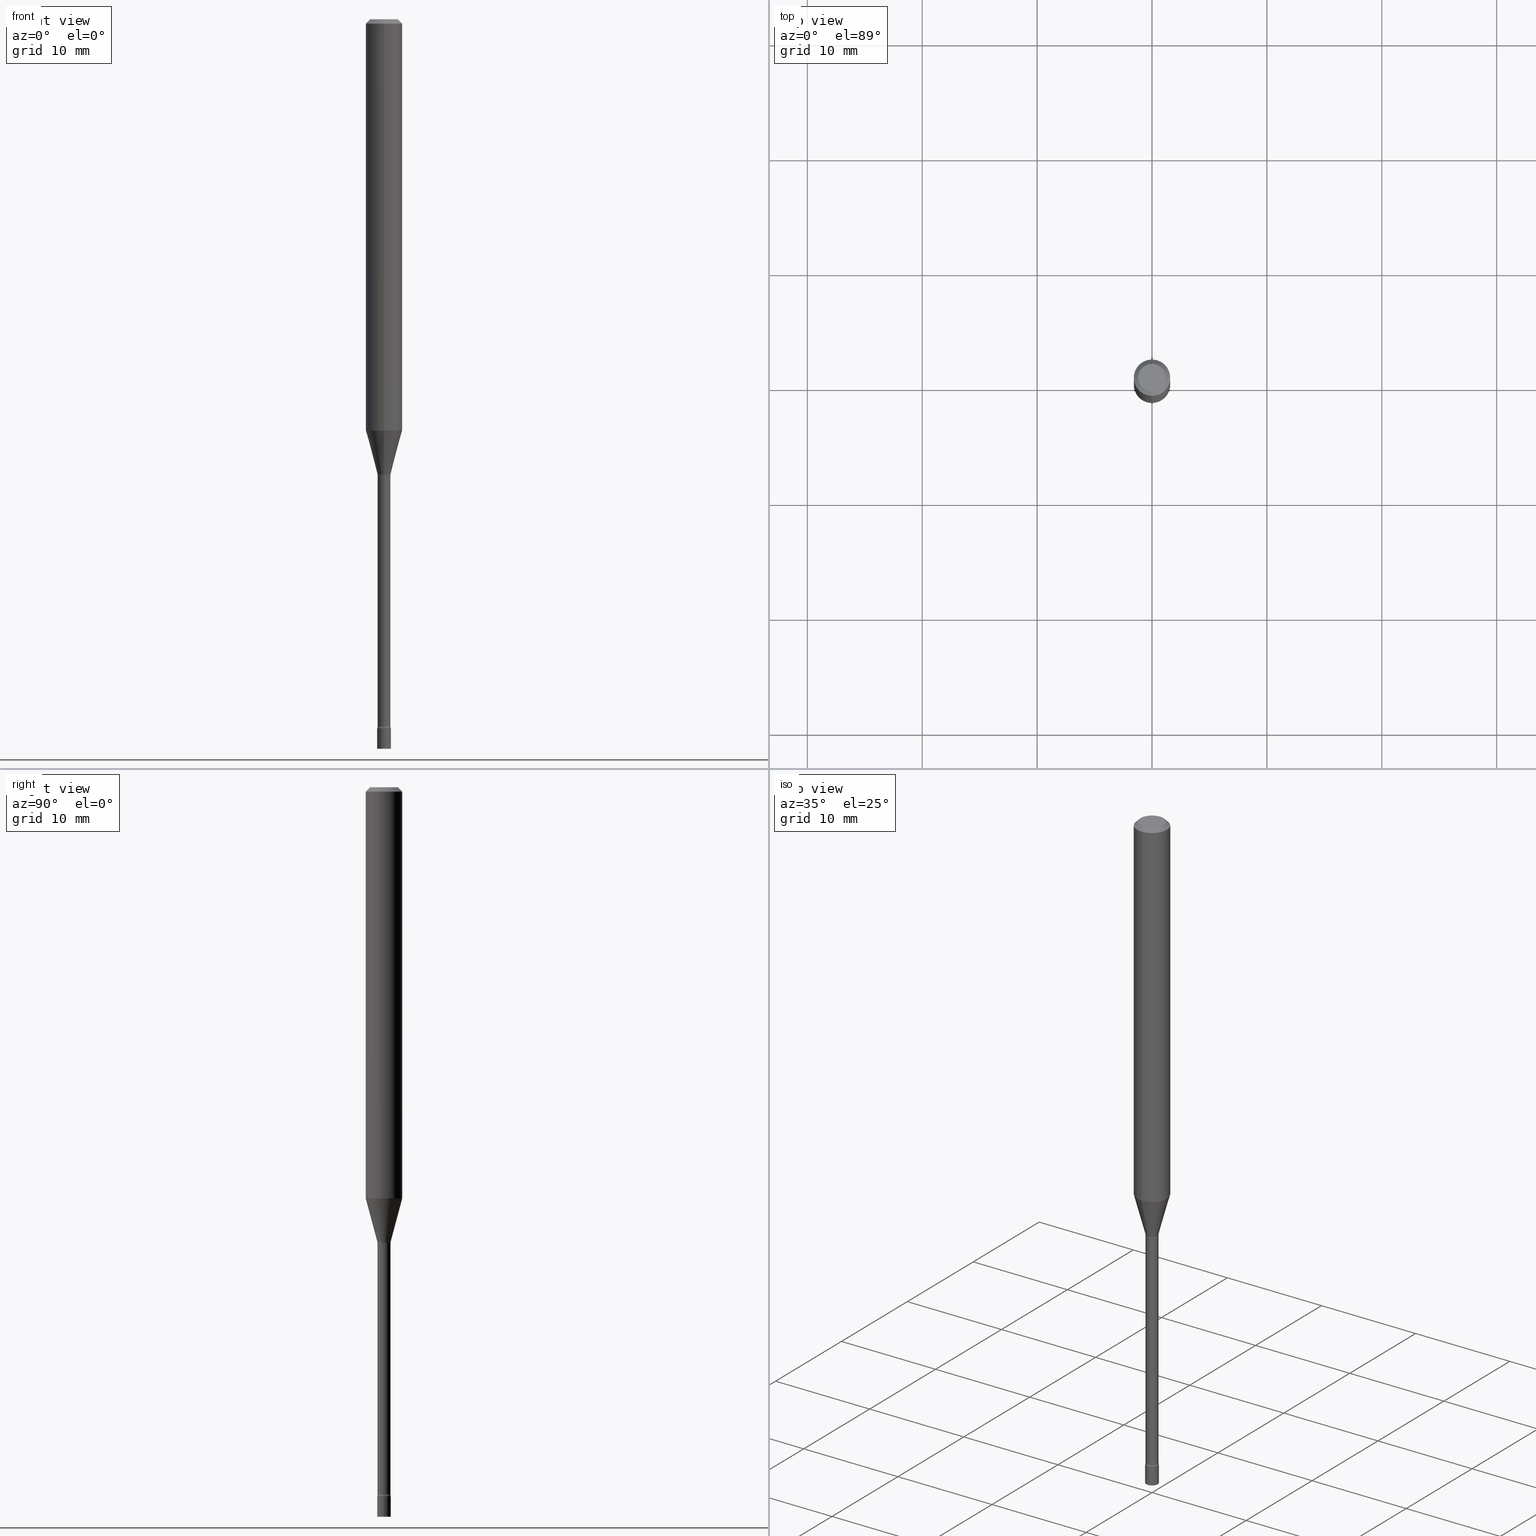
[diagram: canonical four-view strip — front | top / right | iso, engineering-drawing reading convention]
A machine part, canonical four-view strip (front | top / right | iso — engineering-drawing reading convention). The complete STEP part file that produces these views, byte-faithful:
ISO-10303-21;
HEADER;
FILE_DESCRIPTION (( 'STEP AP203' ),
    '1' );
FILE_NAME ('09660.STEP',
    '2024-03-09T00:30:28',
    ( '' ),
    ( '' ),
    'SwSTEP 2.0',
    'SolidWorks 2023',
    '' );
FILE_SCHEMA (( 'CONFIG_CONTROL_DESIGN' ));
ENDSEC;

DATA;
#1 = ORIENTED_EDGE ( 'NONE', *, *, #318, .T. ) ;
#2 = MANIFOLD_SOLID_BREP ( 'Body-Move/Copy2[2]', #260 ) ;
#3 = VECTOR ( 'NONE', #194, 39.37007874015748143 ) ;
#4 = ADVANCED_FACE ( 'NONE', ( #487 ), #83, .T. ) ;
#5 = ORIENTED_EDGE ( 'NONE', *, *, #89, .T. ) ;
#6 = TOROIDAL_SURFACE ( 'NONE', #141, 0.03710000000000006348, 0.01499999999999999424 ) ;
#7 = MECHANICAL_CONTEXT ( 'NONE', #435, 'mechanical' ) ;
#8 = CIRCLE ( 'NONE', #199, 0.02350000000000000352 ) ;
#9 = APPLICATION_PROTOCOL_DEFINITION ( 'international standard', 'config_control_design', 1994, #435 ) ;
#10 = CALENDAR_DATE ( 2024, 8, 3 ) ;
#11 = DIRECTION ( 'NONE',  ( 1.000000000000000000, -6.982962677686228056E-15, 0.000000000000000000 ) ) ;
#12 = LINE ( 'NONE', #256, #41 ) ;
#13 =( NAMED_UNIT ( * ) PLANE_ANGLE_UNIT ( ) SI_UNIT ( $, .RADIAN. ) );
#14 = ORIENTED_EDGE ( 'NONE', *, *, #251, .T. ) ;
#15 = CARTESIAN_POINT ( 'NONE',  ( 6.113672015462842613E-29, -8.728703347107864943E-15, -2.500000000000000000 ) ) ;
#16 = ADVANCED_FACE ( 'NONE', ( #367 ), #165, .F. ) ;
#17 = EDGE_LOOP ( 'NONE', ( #142, #29, #116, #263 ) ) ;
#18 = DIRECTION ( 'NONE',  ( -2.445459864664737566E-29, 3.491494143609276784E-15, 1.000000000000000000 ) ) ;
#19 = ORIENTED_EDGE ( 'NONE', *, *, #458, .F. ) ;
#20 = DIRECTION ( 'NONE',  ( -6.982962677686265922E-15, -1.000000000000000000, 4.370956789862821150E-15 ) ) ;
#21 = ORIENTED_EDGE ( 'NONE', *, *, #450, .F. ) ;
#22 = DIRECTION ( 'NONE',  ( 1.000000000000000000, -6.982962677686265922E-15, 4.876176775795935793E-29 ) ) ;
#23 = AXIS2_PLACEMENT_3D ( 'NONE', #326, #166, #45 ) ;
#24 = DIRECTION ( 'NONE',  ( -6.982962677686263555E-15, -1.000000000000000000, 0.000000000000000000 ) ) ;
#25 = AXIS2_PLACEMENT_3D ( 'NONE', #15, #211, #11 ) ;
#26 = CARTESIAN_POINT ( 'NONE',  ( 4.440892098500625669E-16, 0.06250000000000000000, -2.182183839755797990E-16 ) ) ;
#27 = DIRECTION ( 'NONE',  ( -6.982962677686265922E-15, -1.000000000000000000, 3.491494143609276784E-15 ) ) ;
#28 = APPROVAL_ROLE ( '' ) ;
#29 = ORIENTED_EDGE ( 'NONE', *, *, #95, .T. ) ;
#30 = PRODUCT_DEFINITION ( 'UNKNOWN', '', #145, #160 ) ;
#31 = DIRECTION ( 'NONE',  ( -2.445459864664737566E-29, 3.491494143609276784E-15, 1.000000000000000000 ) ) ;
#32 = ORIENTED_EDGE ( 'NONE', *, *, #404, .F. ) ;
#33 = DIRECTION ( 'NONE',  ( 1.000000000000000000, -6.982962677686228056E-15, 0.000000000000000000 ) ) ;
#34 = DIRECTION ( 'NONE',  ( -2.445459864664737566E-29, 3.491494143609276784E-15, 1.000000000000000000 ) ) ;
#35 = CARTESIAN_POINT ( 'NONE',  ( 1.570299446030416621E-16, 0.02209999999999455109, -1.561974787463811243 ) ) ;
#36 = FACE_OUTER_BOUND ( 'NONE', #76, .T. ) ;
#37 = ADVANCED_FACE ( 'NONE', ( #489 ), #456, .T. ) ;
#38 = VECTOR ( 'NONE', #307, 39.37007874015748143 ) ;
#39 = DIRECTION ( 'NONE',  ( -2.445459864664737566E-29, 3.491494143609276784E-15, 1.000000000000000000 ) ) ;
#40 = CARTESIAN_POINT ( 'NONE',  ( 3.023754139721085035E-16, 0.02261111260565855027, -1.558092501787273321 ) ) ;
#41 = VECTOR ( 'NONE', #301, 39.37007874015748143 ) ;
#42 = VERTEX_POINT ( 'NONE', #300 ) ;
#43 = VECTOR ( 'NONE', #136, 39.37007874015748143 ) ;
#44 = CONICAL_SURFACE ( 'NONE', #51, 0.02261111260566398690, 0.2617993877991501295 ) ;
#45 = DIRECTION ( 'NONE',  ( 6.982962677686265922E-15, 1.000000000000000000, -3.491494143609276390E-15 ) ) ;
#46 = DIRECTION ( 'NONE',  ( -2.445459864664737566E-29, 3.491494143609276784E-15, 1.000000000000000000 ) ) ;
#47 = ORIENTED_EDGE ( 'NONE', *, *, #436, .T. ) ;
#48 = CC_DESIGN_PERSON_AND_ORGANIZATION_ASSIGNMENT ( #462, #406, ( #30 ) ) ;
#49 = AXIS2_PLACEMENT_3D ( 'NONE', #429, #384, #508 ) ;
#50 = APPROVAL_DATE_TIME ( #127, #396 ) ;
#51 = AXIS2_PLACEMENT_3D ( 'NONE', #94, #62, #336 ) ;
#52 = ORIENTED_EDGE ( 'NONE', *, *, #512, .F. ) ;
#53 = AXIS2_PLACEMENT_3D ( 'NONE', #455, #295, #208 ) ;
#54 = ORIENTED_EDGE ( 'NONE', *, *, #128, .T. ) ;
#55 = CARTESIAN_POINT ( 'NONE',  ( 2.636113549670568339E-16, 0.03709999999999160497, -2.422672283192177645 ) ) ;
#56 = DIRECTION ( 'NONE',  ( -2.445459864664737566E-29, 3.491494143609276784E-15, 1.000000000000000000 ) ) ;
#57 = PERSON_AND_ORGANIZATION_ROLE ( 'design_supplier' ) ;
#58 = ADVANCED_FACE ( 'NONE', ( #36 ), #6, .F. ) ;
#59 = CARTESIAN_POINT ( 'NONE',  ( 3.819760618790408980E-29, -5.453605822173385795E-15, -1.561974787463811243 ) ) ;
#60 = CARTESIAN_POINT ( 'NONE',  ( 1.606616180941198289E-16, 0.02261111260565855027, -1.558092501787273321 ) ) ;
#61 = AXIS2_PLACEMENT_3D ( 'NONE', #517, #39, #439 ) ;
#62 = DIRECTION ( 'NONE',  ( -2.445459864664737566E-29, 3.491494143609276784E-15, 1.000000000000000000 ) ) ;
#63 = LOCAL_TIME ( 19, 30, 28.00000000000000000, #230 ) ;
#64 = DIRECTION ( 'NONE',  ( -1.000000000000000000, 6.982962677686265922E-15, -4.876176775795935793E-29 ) ) ;
#65 = EDGE_LOOP ( 'NONE', ( #195, #47, #395, #67 ) ) ;
#66 = PLANE ( 'NONE',  #293 ) ;
#67 = ORIENTED_EDGE ( 'NONE', *, *, #501, .F. ) ;
#68 = DIRECTION ( 'NONE',  ( -2.445459864664737566E-29, 3.491494143609276784E-15, 1.000000000000000000 ) ) ;
#69 = EDGE_CURVE ( 'NONE', #268, #220, #362, .T. ) ;
#70 = ORIENTED_EDGE ( 'NONE', *, *, #388, .T. ) ;
#71 = FACE_OUTER_BOUND ( 'NONE', #17, .T. ) ;
#72 = AXIS2_PLACEMENT_3D ( 'NONE', #344, #179, #505 ) ;
#73 = CARTESIAN_POINT ( 'NONE',  ( -3.773273898774340269E-16, -0.04749999999999999362, 1.369326691199628481E-16 ) ) ;
#74 = AXIS2_PLACEMENT_3D ( 'NONE', #138, #225, #378 ) ;
#75 = AXIS2_PLACEMENT_3D ( 'NONE', #474, #433, #492 ) ;
#76 = EDGE_LOOP ( 'NONE', ( #188, #351, #210, #21 ) ) ;
#77 = CARTESIAN_POINT ( 'NONE',  ( -2.590679153421016779E-16, -0.03710000000000852199, -2.422672283192177645 ) ) ;
#78 = ORIENTED_EDGE ( 'NONE', *, *, #337, .F. ) ;
#79 = CARTESIAN_POINT ( 'NONE',  ( 0.000000000000000000, 0.000000000000000000, 0.000000000000000000 ) ) ;
#80 = EDGE_CURVE ( 'NONE', #502, #42, #281, .T. ) ;
#81 = CYLINDRICAL_SURFACE ( 'NONE', #163, 0.02210000000000003628 ) ;
#82 = CC_DESIGN_APPROVAL ( #396, ( #30 ) ) ;
#83 = CYLINDRICAL_SURFACE ( 'NONE', #249, 0.02350000000000000352 ) ;
#84 = CC_DESIGN_DATE_AND_TIME_ASSIGNMENT ( #459, #172, ( #30 ) ) ;
#85 = DIRECTION ( 'NONE',  ( 2.445459864664737566E-29, -3.491494143609276784E-15, -1.000000000000000000 ) ) ;
#86 = CIRCLE ( 'NONE', #61, 0.02350000000000000352 ) ;
#87 = CC_DESIGN_APPROVAL ( #327, ( #408 ) ) ;
#88 = VERTEX_POINT ( 'NONE', #146 ) ;
#89 = EDGE_CURVE ( 'NONE', #495, #105, #132, .T. ) ;
#90 = DATE_TIME_ROLE ( 'classification_date' ) ;
#91 = APPLICATION_PROTOCOL_DEFINITION ( 'international standard', 'config_control_design', 1994, #121 ) ;
#92 = AXIS2_PLACEMENT_3D ( 'NONE', #155, #117, #518 ) ;
#93 = APPROVAL_PERSON_ORGANIZATION ( #223, #327, #28 ) ;
#94 = CARTESIAN_POINT ( 'NONE',  ( 3.810252678555848085E-29, -5.440070845191792507E-15, -1.558092501787273321 ) ) ;
#95 = EDGE_CURVE ( 'NONE', #502, #358, #432, .T. ) ;
#96 = PERSON_AND_ORGANIZATION ( #168, #420 ) ;
#97 = FACE_OUTER_BOUND ( 'NONE', #303, .T. ) ;
#98 = COORDINATED_UNIVERSAL_TIME_OFFSET ( 5, 0, .BEHIND. ) ;
#99 = DIRECTION ( 'NONE',  ( -6.982962677686265922E-15, -1.000000000000000000, 0.000000000000000000 ) ) ;
#100 = FACE_OUTER_BOUND ( 'NONE', #443, .T. ) ;
#101 = ORIENTED_EDGE ( 'NONE', *, *, #258, .T. ) ;
#102 = CIRCLE ( 'NONE', #403, 0.02261111260566398690 ) ;
#103 = CARTESIAN_POINT ( 'NONE',  ( 1.620037437533623579E-16, 0.02209999999999160900, -2.422672283192177645 ) ) ;
#104 = DIRECTION ( 'NONE',  ( 2.438088387897960049E-29, -3.491481338843145188E-15, -1.000000000000000000 ) ) ;
#105 = VERTEX_POINT ( 'NONE', #73 ) ;
#106 = FACE_OUTER_BOUND ( 'NONE', #139, .T. ) ;
#107 = CC_DESIGN_PERSON_AND_ORGANIZATION_ASSIGNMENT ( #410, #57, ( #145 ) ) ;
#108 = CARTESIAN_POINT ( 'NONE',  ( 0.000000000000000000, 0.000000000000000000, 0.000000000000000000 ) ) ;
#109 = ORIENTED_EDGE ( 'NONE', *, *, #95, .F. ) ;
#110 = CYLINDRICAL_SURFACE ( 'NONE', #451, 0.02210000000000003628 ) ;
#111 = DIRECTION ( 'NONE',  ( -6.982962677686266711E-15, -1.000000000000000000, 3.491494143609277179E-15 ) ) ;
#112 = ORIENTED_EDGE ( 'NONE', *, *, #297, .F. ) ;
#113 = DIRECTION ( 'NONE',  ( -6.982962677686265922E-15, -1.000000000000000000, 3.491494143609276784E-15 ) ) ;
#114 = CIRCLE ( 'NONE', #402, 0.02210000000000007098 ) ;
#115 = AXIS2_PLACEMENT_3D ( 'NONE', #424, #259, #99 ) ;
#116 = ORIENTED_EDGE ( 'NONE', *, *, #297, .T. ) ;
#117 = DIRECTION ( 'NONE',  ( -2.445468806185136597E-29, 3.491481338843145583E-15, 1.000000000000000000 ) ) ;
#118 = DIRECTION ( 'NONE',  ( -6.982962677686265922E-15, -1.000000000000000000, 3.491494143609276784E-15 ) ) ;
#119 = FACE_OUTER_BOUND ( 'NONE', #290, .T. ) ;
#120 = LINE ( 'NONE', #280, #283 ) ;
#121 = APPLICATION_CONTEXT ( 'configuration controlled 3d designs of mechanical parts and assemblies' ) ;
#122 = AXIS2_PLACEMENT_3D ( 'NONE', #55, #304, #134 ) ;
#123 = LOCAL_TIME ( 19, 30, 28.00000000000000000, #98 ) ;
#124 = EDGE_CURVE ( 'NONE', #42, #220, #270, .T. ) ;
#125 = ORIENTED_EDGE ( 'NONE', *, *, #286, .F. ) ;
#126 = CIRCLE ( 'NONE', #115, 0.02210000000000000506 ) ;
#127 = DATE_AND_TIME ( #253, #200 ) ;
#128 = EDGE_CURVE ( 'NONE', #510, #285, #12, .T. ) ;
#129 = EDGE_LOOP ( 'NONE', ( #125, #164, #54, #191 ) ) ;
#130 = DATE_AND_TIME ( #10, #123 ) ;
#131 = ORIENTED_EDGE ( 'NONE', *, *, #183, .F. ) ;
#132 = CIRCLE ( 'NONE', #49, 0.04749999999999999362 ) ;
#133 = CIRCLE ( 'NONE', #338, 0.01499999999999999424 ) ;
#134 = DIRECTION ( 'NONE',  ( 7.105427357601001859E-15, 1.000000000000000000, 0.000000000000000000 ) ) ;
#135 = CARTESIAN_POINT ( 'NONE',  ( -2.590679153421223362E-16, -0.03710000000000546194, -1.561974787463811243 ) ) ;
#136 = DIRECTION ( 'NONE',  ( -2.445459864664737566E-29, 3.491494143609276390E-15, 1.000000000000000000 ) ) ;
#137 = PERSON_AND_ORGANIZATION_ROLE ( 'classification_officer' ) ;
#138 = CARTESIAN_POINT ( 'NONE',  ( 3.446203538179899442E-29, -4.920301349084003564E-15, -1.409225147374218112 ) ) ;
#139 = EDGE_LOOP ( 'NONE', ( #385, #181, #184, #343 ) ) ;
#140 = CARTESIAN_POINT ( 'NONE',  ( 3.446203538179899442E-29, -4.920301349084003564E-15, -1.409225147374218112 ) ) ;
#141 = AXIS2_PLACEMENT_3D ( 'NONE', #313, #18, #186 ) ;
#142 = ORIENTED_EDGE ( 'NONE', *, *, #80, .F. ) ;
#143 = EDGE_CURVE ( 'NONE', #149, #268, #114, .T. ) ;
#144 = AXIS2_PLACEMENT_3D ( 'NONE', #178, #221, #500 ) ;
#145 = PRODUCT_DEFINITION_FORMATION_WITH_SPECIFIED_SOURCE ( 'ANY', '', #212, .NOT_KNOWN. ) ;
#146 = CARTESIAN_POINT ( 'NONE',  ( 4.440892098500968330E-16, 0.06249999999999506645, -1.409225147374218334 ) ) ;
#147 = EDGE_LOOP ( 'NONE', ( #416, #507, #465, #224 ) ) ;
#148 = CARTESIAN_POINT ( 'NONE',  ( 5.940022011270647175E-29, -8.480839274826933485E-15, -2.429000000000000270 ) ) ;
#149 = VERTEX_POINT ( 'NONE', #103 ) ;
#150 = DIRECTION ( 'NONE',  ( -2.445459864664737566E-29, 3.491494143609276784E-15, 1.000000000000000000 ) ) ;
#151 = ADVANCED_FACE ( 'NONE', ( #106 ), #44, .T. ) ;
#152 = CARTESIAN_POINT ( 'NONE',  ( 3.810252678555848085E-29, -5.440070845191792507E-15, -1.558092501787273321 ) ) ;
#153 = SHAPE_DEFINITION_REPRESENTATION ( #412, #332 ) ;
#154 = ORIENTED_EDGE ( 'NONE', *, *, #218, .F. ) ;
#155 = CARTESIAN_POINT ( 'NONE',  ( 5.940043730223697314E-29, -8.480808172050001970E-15, -2.429000000000000270 ) ) ;
#156 = CIRCLE ( 'NONE', #204, 0.06250000000000000000 ) ;
#157 = CARTESIAN_POINT ( 'NONE',  ( 3.668189796997113601E-31, -5.237241215413926147E-17, -0.01500000000000003067 ) ) ;
#158 = FACE_OUTER_BOUND ( 'NONE', #365, .T. ) ;
#159 = CARTESIAN_POINT ( 'NONE',  ( 0.000000000000000000, 0.000000000000000000, 0.000000000000000000 ) ) ;
#160 = DESIGN_CONTEXT ( 'detailed design', #121, 'design' ) ;
#161 = ORIENTED_EDGE ( 'NONE', *, *, #124, .T. ) ;
#162 = ADVANCED_FACE ( 'NONE', ( #496 ), #468, .F. ) ;
#163 = AXIS2_PLACEMENT_3D ( 'NONE', #79, #482, #192 ) ;
#164 = ORIENTED_EDGE ( 'NONE', *, *, #218, .T. ) ;
#165 = PLANE ( 'NONE',  #23 ) ;
#166 = DIRECTION ( 'NONE',  ( 2.445459864664737566E-29, -3.491494143609276390E-15, -1.000000000000000000 ) ) ;
#167 = ADVANCED_FACE ( 'NONE', ( #299 ), #353, .F. ) ;
#168 = PERSON ( 'UNSPECIFIED', 'UNSPECIFIED', 'UNSPECIFIED', ('UNSPECIFIED'), ('UNSPECIFIED'), ('UNSPECIFIED') ) ;
#169 = AXIS2_PLACEMENT_3D ( 'NONE', #157, #481, #442 ) ;
#170 = APPROVAL_ROLE ( '' ) ;
#171 = EDGE_LOOP ( 'NONE', ( #437, #393, #284, #52 ) ) ;
#172 = DATE_TIME_ROLE ( 'creation_date' ) ;
#173 = DIRECTION ( 'NONE',  ( -2.445468806185136597E-29, 3.491481338843145583E-15, 1.000000000000000000 ) ) ;
#174 = CC_DESIGN_PERSON_AND_ORGANIZATION_ASSIGNMENT ( #499, #137, ( #408 ) ) ;
#175 = CIRCLE ( 'NONE', #92, 0.02350000000000000352 ) ;
#176 = COORDINATED_UNIVERSAL_TIME_OFFSET ( 5, 0, .BEHIND. ) ;
#177 = AXIS2_PLACEMENT_3D ( 'NONE', #232, #317, #118 ) ;
#178 = CARTESIAN_POINT ( 'NONE',  ( 3.668189796997113601E-31, -5.237241215413926147E-17, -0.01500000000000003067 ) ) ;
#179 = DIRECTION ( 'NONE',  ( -2.445459864664737566E-29, 3.491494143609276784E-15, 1.000000000000000000 ) ) ;
#180 = PLANE ( 'NONE',  #282 ) ;
#181 = ORIENTED_EDGE ( 'NONE', *, *, #80, .T. ) ;
#182 = DIRECTION ( 'NONE',  ( -2.445459864664737566E-29, 3.491494143609276390E-15, 1.000000000000000000 ) ) ;
#183 = EDGE_CURVE ( 'NONE', #325, #405, #407, .T. ) ;
#184 = ORIENTED_EDGE ( 'NONE', *, *, #447, .T. ) ;
#185 = CARTESIAN_POINT ( 'NONE',  ( 5.940043730223697314E-29, -8.480808172050001970E-15, -2.429000000000000270 ) ) ;
#186 = DIRECTION ( 'NONE',  ( -6.982962677686265922E-15, -1.000000000000000000, 3.491494143609276784E-15 ) ) ;
#187 = VECTOR ( 'NONE', #182, 39.37007874015748143 ) ;
#188 = ORIENTED_EDGE ( 'NONE', *, *, #143, .F. ) ;
#189 = CIRCLE ( 'NONE', #25, 0.02350000000000000352 ) ;
#190 = DIRECTION ( 'NONE',  ( -2.445459864664737566E-29, 3.491494143609276784E-15, 1.000000000000000000 ) ) ;
#191 = ORIENTED_EDGE ( 'NONE', *, *, #258, .F. ) ;
#192 = DIRECTION ( 'NONE',  ( -6.982962677686265922E-15, -1.000000000000000000, 3.491494143609276784E-15 ) ) ;
#193 = EDGE_CURVE ( 'NONE', #316, #88, #156, .T. ) ;
#194 = DIRECTION ( 'NONE',  ( -2.445459864664737566E-29, 3.491494143609276390E-15, 1.000000000000000000 ) ) ;
#195 = ORIENTED_EDGE ( 'NONE', *, *, #193, .T. ) ;
#196 = DIRECTION ( 'NONE',  ( -2.445459864664737566E-29, 3.491494143609276784E-15, 1.000000000000000000 ) ) ;
#197 = FACE_OUTER_BOUND ( 'NONE', #129, .T. ) ;
#198 = DIRECTION ( 'NONE',  ( 2.445459864664737566E-29, -3.491494143609276784E-15, -1.000000000000000000 ) ) ;
#199 = AXIS2_PLACEMENT_3D ( 'NONE', #470, #319, #33 ) ;
#200 = LOCAL_TIME ( 19, 30, 28.00000000000000000, #176 ) ;
#201 = CARTESIAN_POINT ( 'NONE',  ( 3.840629472727447874E-16, 0.04749999999999999362, -1.947592745229184119E-16 ) ) ;
#202 = CARTESIAN_POINT ( 'NONE',  ( -0.02350000000000000352, -8.437778216675308581E-15, -2.429000000000000270 ) ) ;
#203 = APPROVAL ( #409, 'UNSPECIFIED' ) ;
#204 = AXIS2_PLACEMENT_3D ( 'NONE', #140, #460, #20 ) ;
#205 = PRODUCT_RELATED_PRODUCT_CATEGORY ( 'detail', '', ( #212 ) ) ;
#206 = ORIENTED_EDGE ( 'NONE', *, *, #128, .F. ) ;
#207 = PERSON_AND_ORGANIZATION ( #168, #420 ) ;
#208 = DIRECTION ( 'NONE',  ( 1.000000000000000000, 0.000000000000000000, 0.000000000000000000 ) ) ;
#209 = EDGE_CURVE ( 'NONE', #149, #325, #339, .T. ) ;
#210 = ORIENTED_EDGE ( 'NONE', *, *, #183, .T. ) ;
#211 = DIRECTION ( 'NONE',  ( -2.445468806185136597E-29, 3.491481338843145583E-15, 1.000000000000000000 ) ) ;
#212 = PRODUCT ( '09660', '09660', '', ( #7 ) ) ;
#213 =( LENGTH_UNIT ( ) NAMED_UNIT ( * ) SI_UNIT ( $, .METRE. ) );
#214 = CARTESIAN_POINT ( 'NONE',  ( 4.440892098500972274E-16, 0.06249999999999993755, -0.01500000000000024751 ) ) ;
#215 = VECTOR ( 'NONE', #219, 39.37007874015747433 ) ;
#216 = DIRECTION ( 'NONE',  ( -2.445459864664737566E-29, 3.491494143609276390E-15, 1.000000000000000000 ) ) ;
#217 = CARTESIAN_POINT ( 'NONE',  ( 5.924547833782153992E-29, -8.458746088650004538E-15, -2.422672283192177645 ) ) ;
#218 = EDGE_CURVE ( 'NONE', #346, #510, #189, .T. ) ;
#219 = DIRECTION ( 'NONE',  ( 1.839019923739599526E-15, 0.2588190451025248473, 0.9659258262890673130 ) ) ;
#220 = VERTEX_POINT ( 'NONE', #264 ) ;
#221 = DIRECTION ( 'NONE',  ( -2.445459864664737566E-29, 3.491494143609276784E-15, 1.000000000000000000 ) ) ;
#222 = DIRECTION ( 'NONE',  ( -2.445459864664737566E-29, 3.491494143609276784E-15, 1.000000000000000000 ) ) ;
#223 = PERSON_AND_ORGANIZATION ( #168, #420 ) ;
#224 = ORIENTED_EDGE ( 'NONE', *, *, #473, .T. ) ;
#225 = DIRECTION ( 'NONE',  ( -2.445459864664737566E-29, 3.491494143609276784E-15, 1.000000000000000000 ) ) ;
#226 = CARTESIAN_POINT ( 'NONE',  ( 3.810252678555848085E-29, -5.440070845191792507E-15, -1.558092501787273321 ) ) ;
#227 = ORIENTED_EDGE ( 'NONE', *, *, #458, .T. ) ;
#228 = CARTESIAN_POINT ( 'NONE',  ( -0.02350000000000000352, -8.437778216675308581E-15, -2.500000000000000000 ) ) ;
#229 = CC_DESIGN_SECURITY_CLASSIFICATION ( #408, ( #145 ) ) ;
#230 = COORDINATED_UNIVERSAL_TIME_OFFSET ( 5, 0, .BEHIND. ) ;
#231 = EDGE_LOOP ( 'NONE', ( #233, #14, #275, #423 ) ) ;
#232 = CARTESIAN_POINT ( 'NONE',  ( 5.924569496155794395E-29, -8.458715066898005273E-15, -2.422672283192177645 ) ) ;
#233 = ORIENTED_EDGE ( 'NONE', *, *, #436, .F. ) ;
#234 = CARTESIAN_POINT ( 'NONE',  ( -4.364351673553912750E-16, -0.06250000000000005551, -0.01499999999999981209 ) ) ;
#235 = CARTESIAN_POINT ( 'NONE',  ( -1.578925554262749888E-16, -0.02261111260566942699, -1.558092501787273321 ) ) ;
#236 = ORIENTED_EDGE ( 'NONE', *, *, #69, .F. ) ;
#237 = AXIS2_PLACEMENT_3D ( 'NONE', #449, #85, #401 ) ;
#238 = AXIS2_PLACEMENT_3D ( 'NONE', #59, #190, #254 ) ;
#239 =( GEOMETRIC_REPRESENTATION_CONTEXT ( 3 ) GLOBAL_UNCERTAINTY_ASSIGNED_CONTEXT ( ( #363 ) ) GLOBAL_UNIT_ASSIGNED_CONTEXT ( ( #328, #13, #375 ) ) REPRESENTATION_CONTEXT ( 'NONE', 'WORKASPACE' ) );
#240 = EDGE_CURVE ( 'NONE', #220, #358, #126, .T. ) ;
#241 = DIRECTION ( 'NONE',  ( 4.937700262164548042E-15, 0.7071067811865451302, -0.7071067811865499042 ) ) ;
#242 = DIRECTION ( 'NONE',  ( 1.000000000000000000, -6.982962677686265922E-15, 4.876176775795935793E-29 ) ) ;
#243 = ADVANCED_FACE ( 'NONE', ( #97 ), #66, .T. ) ;
#244 = AXIS2_PLACEMENT_3D ( 'NONE', #379, #222, #111 ) ;
#245 = TOROIDAL_SURFACE ( 'NONE', #177, 0.03710000000000006348, 0.01499999999999999424 ) ;
#246 = LENGTH_MEASURE_WITH_UNIT ( LENGTH_MEASURE( 0.02539999999999999897 ), #213 );
#247 = VERTEX_POINT ( 'NONE', #214 ) ;
#248 = ORIENTED_EDGE ( 'NONE', *, *, #193, .F. ) ;
#249 = AXIS2_PLACEMENT_3D ( 'NONE', #159, #321, #242 ) ;
#250 = ORIENTED_EDGE ( 'NONE', *, *, #473, .F. ) ;
#251 = EDGE_CURVE ( 'NONE', #88, #316, #315, .T. ) ;
#252 = CONICAL_SURFACE ( 'NONE', #373, 0.06250000000000000000, 0.7853981633974483900 ) ;
#253 = CALENDAR_DATE ( 2024, 8, 3 ) ;
#254 = DIRECTION ( 'NONE',  ( -6.982962677686265922E-15, -1.000000000000000000, 3.491494143609276784E-15 ) ) ;
#255 = PERSON_AND_ORGANIZATION_ROLE ( 'creator' ) ;
#256 = CARTESIAN_POINT ( 'NONE',  ( 0.02350000000000000352, -1.640996229256272766E-16, 1.145901542312045115E-30 ) ) ;
#257 = EDGE_LOOP ( 'NONE', ( #109, #19, #161, #306 ) ) ;
#258 = EDGE_CURVE ( 'NONE', #515, #285, #419, .T. ) ;
#259 = DIRECTION ( 'NONE',  ( -2.445459864664737566E-29, 3.491494143609276784E-15, 1.000000000000000000 ) ) ;
#260 = CLOSED_SHELL ( 'NONE', ( #359, #334, #58, #37, #400, #377, #151, #371, #309, #16, #167, #493, #352, #162 ) ) ;
#261 = DIRECTION ( 'NONE',  ( -2.445459864664737566E-29, 3.491494143609276784E-15, 1.000000000000000000 ) ) ;
#262 = CIRCLE ( 'NONE', #244, 0.04749999999999999362 ) ;
#263 = ORIENTED_EDGE ( 'NONE', *, *, #124, .F. ) ;
#264 = CARTESIAN_POINT ( 'NONE',  ( -1.543234751768283257E-16, -0.02210000000000545903, -1.561974787463811243 ) ) ;
#265 = LINE ( 'NONE', #60, #215 ) ;
#266 = EDGE_LOOP ( 'NONE', ( #32, #469, #335, #112 ) ) ;
#267 = DIRECTION ( 'NONE',  ( -6.982962677686265922E-15, -1.000000000000000000, 0.000000000000000000 ) ) ;
#268 = VERTEX_POINT ( 'NONE', #417 ) ;
#269 = CC_DESIGN_PERSON_AND_ORGANIZATION_ASSIGNMENT ( #96, #255, ( #145 ) ) ;
#270 = CIRCLE ( 'NONE', #391, 0.01500000000000002720 ) ;
#271 = ORIENTED_EDGE ( 'NONE', *, *, #425, .T. ) ;
#272 = CARTESIAN_POINT ( 'NONE',  ( 0.000000000000000000, 0.000000000000000000, 0.000000000000000000 ) ) ;
#273 = DIRECTION ( 'NONE',  ( 1.000000000000000000, -6.982962677686265922E-15, 4.876176775795935793E-29 ) ) ;
#274 = APPROVAL_STATUS ( 'not_yet_approved' ) ;
#275 = ORIENTED_EDGE ( 'NONE', *, *, #501, .T. ) ;
#276 = LINE ( 'NONE', #444, #497 ) ;
#277 = LINE ( 'NONE', #26, #3 ) ;
#278 = CARTESIAN_POINT ( 'NONE',  ( 1.669775429036828812E-16, 0.02349999999999151726, -2.429000000000000270 ) ) ;
#279 = EDGE_CURVE ( 'NONE', #311, #247, #446, .T. ) ;
#280 = CARTESIAN_POINT ( 'NONE',  ( -4.364351673553916201E-16, -0.06250000000000000000, 2.182183839755797990E-16 ) ) ;
#281 = CIRCLE ( 'NONE', #72, 0.02261111260566398690 ) ;
#282 = AXIS2_PLACEMENT_3D ( 'NONE', #355, #104, #64 ) ;
#283 = VECTOR ( 'NONE', #509, 39.37007874015748143 ) ;
#284 = ORIENTED_EDGE ( 'NONE', *, *, #279, .T. ) ;
#285 = VERTEX_POINT ( 'NONE', #386 ) ;
#286 = EDGE_CURVE ( 'NONE', #346, #515, #347, .T. ) ;
#287 = CIRCLE ( 'NONE', #486, 0.02210000000000000506 ) ;
#288 = ORIENTED_EDGE ( 'NONE', *, *, #447, .F. ) ;
#289 = CALENDAR_DATE ( 2024, 8, 3 ) ;
#290 = EDGE_LOOP ( 'NONE', ( #78, #513, #430, #475 ) ) ;
#291 = EDGE_CURVE ( 'NONE', #510, #346, #8, .T. ) ;
#292 = PERSON_AND_ORGANIZATION_ROLE ( 'design_owner' ) ;
#293 = AXIS2_PLACEMENT_3D ( 'NONE', #428, #296, #22 ) ;
#294 = LOCAL_TIME ( 19, 30, 28.00000000000000000, #452 ) ;
#295 = DIRECTION ( 'NONE',  ( 0.000000000000000000, 0.000000000000000000, 1.000000000000000000 ) ) ;
#296 = DIRECTION ( 'NONE',  ( -2.438088387897960049E-29, 3.491481338843145188E-15, 1.000000000000000000 ) ) ;
#297 = EDGE_CURVE ( 'NONE', #358, #220, #287, .T. ) ;
#298 = ORIENTED_EDGE ( 'NONE', *, *, #520, .T. ) ;
#299 = FACE_OUTER_BOUND ( 'NONE', #488, .T. ) ;
#300 = CARTESIAN_POINT ( 'NONE',  ( -1.578925554262749888E-16, -0.02261111260566942699, -1.558092501787273321 ) ) ;
#301 = DIRECTION ( 'NONE',  ( -2.445468806185136877E-29, 3.491481338843145188E-15, 1.000000000000000000 ) ) ;
#302 = CARTESIAN_POINT ( 'NONE',  ( -1.640996229255678655E-16, -0.02350000000000847938, -2.429000000000000270 ) ) ;
#303 = EDGE_LOOP ( 'NONE', ( #1, #101 ) ) ;
#304 = DIRECTION ( 'NONE',  ( 1.000000000000000000, -7.105427357601001070E-15, 4.926315665355240651E-29 ) ) ;
#305 = APPROVAL_PERSON_ORGANIZATION ( #207, #396, #170 ) ;
#306 = ORIENTED_EDGE ( 'NONE', *, *, #240, .T. ) ;
#307 = DIRECTION ( 'NONE',  ( -2.445468806185136877E-29, 3.491481338843145188E-15, 1.000000000000000000 ) ) ;
#308 = DIRECTION ( 'NONE',  ( -6.982962677686265922E-15, -1.000000000000000000, 0.000000000000000000 ) ) ;
#309 = ADVANCED_FACE ( 'NONE', ( #119 ), #252, .T. ) ;
#310 = CARTESIAN_POINT ( 'NONE',  ( 0.02350000000000000352, -8.892802970033491011E-15, -2.500000000000000000 ) ) ;
#311 = VERTEX_POINT ( 'NONE', #234 ) ;
#312 = DIRECTION ( 'NONE',  ( -6.982962677686265922E-15, -1.000000000000000000, 3.491494143609276784E-15 ) ) ;
#313 = CARTESIAN_POINT ( 'NONE',  ( 5.924569496155794395E-29, -8.458715066898005273E-15, -2.422672283192177645 ) ) ;
#314 = DIRECTION ( 'NONE',  ( -6.982962677686265922E-15, -1.000000000000000000, 0.000000000000000000 ) ) ;
#315 = CIRCLE ( 'NONE', #74, 0.06250000000000000000 ) ;
#316 = VERTEX_POINT ( 'NONE', #476 ) ;
#317 = DIRECTION ( 'NONE',  ( -2.445459864664737566E-29, 3.491494143609276784E-15, 1.000000000000000000 ) ) ;
#318 = EDGE_CURVE ( 'NONE', #285, #515, #175, .T. ) ;
#319 = DIRECTION ( 'NONE',  ( -2.445468806185136597E-29, 3.491481338843145583E-15, 1.000000000000000000 ) ) ;
#320 = FACE_OUTER_BOUND ( 'NONE', #147, .T. ) ;
#321 = DIRECTION ( 'NONE',  ( -2.445468806185136597E-29, 3.491481338843145583E-15, 1.000000000000000000 ) ) ;
#322 = AXIS2_PLACEMENT_3D ( 'NONE', #342, #467, #418 ) ;
#323 = AXIS2_PLACEMENT_3D ( 'NONE', #148, #68, #267 ) ;
#324 = CC_DESIGN_APPROVAL ( #203, ( #145 ) ) ;
#325 = VERTEX_POINT ( 'NONE', #278 ) ;
#326 = CARTESIAN_POINT ( 'NONE',  ( 3.316907271900976096E-16, 0.04749999999999999362, -1.803026231721795148E-16 ) ) ;
#327 = APPROVAL ( #274, 'UNSPECIFIED' ) ;
#328 =( CONVERSION_BASED_UNIT ( 'INCH', #246 ) LENGTH_UNIT ( ) NAMED_UNIT ( #448 ) );
#329 = CLOSED_SHELL ( 'NONE', ( #4, #243, #466, #411 ) ) ;
#330 = AXIS2_PLACEMENT_3D ( 'NONE', #108, #56, #27 ) ;
#331 = CIRCLE ( 'NONE', #75, 0.02210000000000007098 ) ;
#332 = ADVANCED_BREP_SHAPE_REPRESENTATION ( '09660', ( #366, #2, #53 ), #239 ) ;
#333 = APPROVAL_ROLE ( '' ) ;
#334 = ADVANCED_FACE ( 'NONE', ( #158 ), #81, .T. ) ;
#335 = ORIENTED_EDGE ( 'NONE', *, *, #69, .T. ) ;
#336 = DIRECTION ( 'NONE',  ( -6.982962677686265922E-15, -1.000000000000000000, 0.000000000000000000 ) ) ;
#337 = EDGE_CURVE ( 'NONE', #105, #311, #276, .T. ) ;
#338 = AXIS2_PLACEMENT_3D ( 'NONE', #77, #519, #483 ) ;
#339 = CIRCLE ( 'NONE', #122, 0.01499999999999999424 ) ;
#340 = DIRECTION ( 'NONE',  ( -6.982962677686265922E-15, -1.000000000000000000, 3.491494143609276784E-15 ) ) ;
#341 = SECURITY_CLASSIFICATION_LEVEL ( 'unclassified' ) ;
#342 = CARTESIAN_POINT ( 'NONE',  ( 2.636113549670353374E-16, 0.03709999999999454706, -1.561974787463811243 ) ) ;
#343 = ORIENTED_EDGE ( 'NONE', *, *, #251, .F. ) ;
#344 = CARTESIAN_POINT ( 'NONE',  ( 3.810252678555848085E-29, -5.440070845191792507E-15, -1.558092501787273321 ) ) ;
#345 = DIRECTION ( 'NONE',  ( -2.445459864664737566E-29, 3.491494143609276784E-15, 1.000000000000000000 ) ) ;
#346 = VERTEX_POINT ( 'NONE', #228 ) ;
#347 = LINE ( 'NONE', #504, #38 ) ;
#348 = CARTESIAN_POINT ( 'NONE',  ( -1.543234751768667333E-16, -0.02210000000000003628, 7.716202057376514729E-17 ) ) ;
#349 = AXIS2_PLACEMENT_3D ( 'NONE', #383, #216, #463 ) ;
#350 = APPROVAL_PERSON_ORGANIZATION ( #491, #203, #333 ) ;
#351 = ORIENTED_EDGE ( 'NONE', *, *, #209, .T. ) ;
#352 = ADVANCED_FACE ( 'NONE', ( #472 ), #110, .T. ) ;
#353 = PLANE ( 'NONE',  #349 ) ;
#354 = CYLINDRICAL_SURFACE ( 'NONE', #516, 0.02350000000000000352 ) ;
#355 = CARTESIAN_POINT ( 'NONE',  ( 1.640996229256884133E-16, 0.02349999999999127440, -2.500000000000000000 ) ) ;
#356 = ORIENTED_EDGE ( 'NONE', *, *, #291, .F. ) ;
#357 = FACE_OUTER_BOUND ( 'NONE', #231, .T. ) ;
#358 = VERTEX_POINT ( 'NONE', #35 ) ;
#359 = ADVANCED_FACE ( 'NONE', ( #71 ), #457, .F. ) ;
#360 = DIRECTION ( 'NONE',  ( -1.807323732225328562E-15, -0.2588190451025179639, 0.9659258262890689783 ) ) ;
#361 = CIRCLE ( 'NONE', #169, 0.06250000000000000000 ) ;
#362 = LINE ( 'NONE', #348, #187 ) ;
#363 = UNCERTAINTY_MEASURE_WITH_UNIT (LENGTH_MEASURE( 1.000000000000000082E-05 ), #328, 'distance_accuracy_value', 'NONE');
#364 = LINE ( 'NONE', #235, #477 ) ;
#365 = EDGE_LOOP ( 'NONE', ( #298, #440, #390, #236 ) ) ;
#366 = MANIFOLD_SOLID_BREP ( 'Body-Move/Copy2[1]', #329 ) ;
#367 = FACE_OUTER_BOUND ( 'NONE', #485, .T. ) ;
#368 = CC_DESIGN_DATE_AND_TIME_ASSIGNMENT ( #454, #90, ( #408 ) ) ;
#369 = AXIS2_PLACEMENT_3D ( 'NONE', #226, #261, #308 ) ;
#370 = PERSON_AND_ORGANIZATION ( #168, #420 ) ;
#371 = ADVANCED_FACE ( 'NONE', ( #357 ), #438, .T. ) ;
#372 = CALENDAR_DATE ( 2024, 8, 3 ) ;
#373 = AXIS2_PLACEMENT_3D ( 'NONE', #394, #198, #441 ) ;
#374 = VECTOR ( 'NONE', #241, 39.37007874015748143 ) ;
#375 =( NAMED_UNIT ( * ) SI_UNIT ( $, .STERADIAN. ) SOLID_ANGLE_UNIT ( ) );
#376 = APPROVAL_STATUS ( 'not_yet_approved' ) ;
#377 = ADVANCED_FACE ( 'NONE', ( #100 ), #434, .T. ) ;
#378 = DIRECTION ( 'NONE',  ( -6.982962677686265922E-15, -1.000000000000000000, 4.370956789862821150E-15 ) ) ;
#379 = CARTESIAN_POINT ( 'NONE',  ( 7.070632131136643894E-46, -1.009506270546119456E-31, -2.891330270147777573E-17 ) ) ;
#380 = DIRECTION ( 'NONE',  ( 1.000000000000000000, -6.982962677686269866E-15, 0.000000000000000000 ) ) ;
#381 = AXIS2_PLACEMENT_3D ( 'NONE', #272, #345, #340 ) ;
#382 = LOCAL_TIME ( 19, 30, 28.00000000000000000, #415 ) ;
#383 = CARTESIAN_POINT ( 'NONE',  ( 1.640996229256866630E-16, 0.02349999999999152073, -2.429000000000000270 ) ) ;
#384 = DIRECTION ( 'NONE',  ( -2.445459864664737566E-29, 3.491494143609276784E-15, 1.000000000000000000 ) ) ;
#385 = ORIENTED_EDGE ( 'NONE', *, *, #425, .F. ) ;
#386 = CARTESIAN_POINT ( 'NONE',  ( 0.02350000000000000352, -8.644907794975628038E-15, -2.429000000000000270 ) ) ;
#387 = CARTESIAN_POINT ( 'NONE',  ( 1.570299446029823742E-16, 0.02210000000000003628, -7.716202057376514729E-17 ) ) ;
#388 = EDGE_CURVE ( 'NONE', #105, #495, #262, .T. ) ;
#389 = APPROVAL_DATE_TIME ( #426, #327 ) ;
#390 = ORIENTED_EDGE ( 'NONE', *, *, #240, .F. ) ;
#391 = AXIS2_PLACEMENT_3D ( 'NONE', #135, #461, #24 ) ;
#392 = AXIS2_PLACEMENT_3D ( 'NONE', #185, #173, #380 ) ;
#393 = ORIENTED_EDGE ( 'NONE', *, *, #337, .T. ) ;
#394 = CARTESIAN_POINT ( 'NONE',  ( 3.668189796997113601E-31, -5.237241215413926147E-17, -0.01500000000000003067 ) ) ;
#395 = ORIENTED_EDGE ( 'NONE', *, *, #279, .F. ) ;
#396 = APPROVAL ( #376, 'UNSPECIFIED' ) ;
#397 = LINE ( 'NONE', #445, #374 ) ;
#398 = DIRECTION ( 'NONE',  ( -4.851104656540964275E-15, -0.7071067811865500152, -0.7071067811865450192 ) ) ;
#399 = DIRECTION ( 'NONE',  ( -2.445468806185136597E-29, 3.491481338843145583E-15, 1.000000000000000000 ) ) ;
#400 = ADVANCED_FACE ( 'NONE', ( #464 ), #421, .T. ) ;
#401 = DIRECTION ( 'NONE',  ( 6.982962677686265922E-15, 1.000000000000000000, -3.483106191921935554E-15 ) ) ;
#402 = AXIS2_PLACEMENT_3D ( 'NONE', #217, #46, #413 ) ;
#403 = AXIS2_PLACEMENT_3D ( 'NONE', #152, #34, #314 ) ;
#404 = EDGE_CURVE ( 'NONE', #149, #358, #498, .T. ) ;
#405 = VERTEX_POINT ( 'NONE', #302 ) ;
#406 = PERSON_AND_ORGANIZATION_ROLE ( 'creator' ) ;
#407 = CIRCLE ( 'NONE', #323, 0.02350000000000000352 ) ;
#408 = SECURITY_CLASSIFICATION ( '', '', #341 ) ;
#409 = APPROVAL_STATUS ( 'not_yet_approved' ) ;
#410 = PERSON_AND_ORGANIZATION ( #168, #420 ) ;
#411 = ADVANCED_FACE ( 'NONE', ( #414 ), #180, .T. ) ;
#412 = PRODUCT_DEFINITION_SHAPE ( 'NONE', 'NONE',  #30 ) ;
#413 = DIRECTION ( 'NONE',  ( -6.982962677686265133E-15, -1.000000000000000000, 0.000000000000000000 ) ) ;
#414 = FACE_OUTER_BOUND ( 'NONE', #471, .T. ) ;
#415 = COORDINATED_UNIVERSAL_TIME_OFFSET ( 5, 0, .BEHIND. ) ;
#416 = ORIENTED_EDGE ( 'NONE', *, *, #209, .F. ) ;
#417 = CARTESIAN_POINT ( 'NONE',  ( -1.543234751768077413E-16, -0.02210000000000852949, -2.422672283192177645 ) ) ;
#418 = DIRECTION ( 'NONE',  ( 7.105427357600997914E-15, 1.000000000000000000, 0.000000000000000000 ) ) ;
#419 = CIRCLE ( 'NONE', #392, 0.02350000000000000352 ) ;
#420 = ORGANIZATION ( 'UNSPECIFIED', 'UNSPECIFIED', '' ) ;
#421 = CYLINDRICAL_SURFACE ( 'NONE', #330, 0.06250000000000000000 ) ;
#422 = CALENDAR_DATE ( 2024, 8, 3 ) ;
#423 = ORIENTED_EDGE ( 'NONE', *, *, #484, .F. ) ;
#424 = CARTESIAN_POINT ( 'NONE',  ( 3.819746652360984100E-29, -5.453625822895241987E-15, -1.561974787463811243 ) ) ;
#425 = EDGE_CURVE ( 'NONE', #502, #88, #265, .T. ) ;
#426 = DATE_AND_TIME ( #422, #63 ) ;
#427 = ORIENTED_EDGE ( 'NONE', *, *, #286, .T. ) ;
#428 = CARTESIAN_POINT ( 'NONE',  ( 5.940043730223697314E-29, -8.480808172050001970E-15, -2.429000000000000270 ) ) ;
#429 = CARTESIAN_POINT ( 'NONE',  ( 7.070632131136643894E-46, -1.009506270546119456E-31, -2.891330270147777573E-17 ) ) ;
#430 = ORIENTED_EDGE ( 'NONE', *, *, #512, .T. ) ;
#431 = CARTESIAN_POINT ( 'NONE',  ( 0.000000000000000000, 0.000000000000000000, 0.000000000000000000 ) ) ;
#432 = CIRCLE ( 'NONE', #322, 0.01500000000000002720 ) ;
#433 = DIRECTION ( 'NONE',  ( -2.445459864664737566E-29, 3.491494143609276784E-15, 1.000000000000000000 ) ) ;
#434 = CONICAL_SURFACE ( 'NONE', #369, 0.02261111260566398690, 0.2617993877991501295 ) ;
#435 = APPLICATION_CONTEXT ( 'configuration controlled 3d designs of mechanical parts and assemblies' ) ;
#436 = EDGE_CURVE ( 'NONE', #88, #247, #277, .T. ) ;
#437 = ORIENTED_EDGE ( 'NONE', *, *, #388, .F. ) ;
#438 = CYLINDRICAL_SURFACE ( 'NONE', #381, 0.06250000000000000000 ) ;
#439 = DIRECTION ( 'NONE',  ( -6.982962677686265922E-15, -1.000000000000000000, 0.000000000000000000 ) ) ;
#440 = ORIENTED_EDGE ( 'NONE', *, *, #404, .T. ) ;
#441 = DIRECTION ( 'NONE',  ( 6.982962677686265922E-15, 1.000000000000000000, -3.483106191921935554E-15 ) ) ;
#442 = DIRECTION ( 'NONE',  ( -6.982962677686265922E-15, -1.000000000000000000, 3.483106191921935554E-15 ) ) ;
#443 = EDGE_LOOP ( 'NONE', ( #227, #271, #248, #288 ) ) ;
#444 = CARTESIAN_POINT ( 'NONE',  ( -4.287811248607203282E-16, -0.06250000000000005551, -0.01499999999999981209 ) ) ;
#445 = CARTESIAN_POINT ( 'NONE',  ( 4.364351673553919652E-16, 0.06249999999999995143, -0.01500000000000024751 ) ) ;
#446 = CIRCLE ( 'NONE', #144, 0.06250000000000000000 ) ;
#447 = EDGE_CURVE ( 'NONE', #42, #316, #364, .T. ) ;
#448 = DIMENSIONAL_EXPONENTS ( 1.000000000000000000, 0.000000000000000000, 0.000000000000000000, 0.000000000000000000, 0.000000000000000000, 0.000000000000000000, 0.000000000000000000 ) ;
#449 = CARTESIAN_POINT ( 'NONE',  ( 3.668189796997113601E-31, -5.237241215413926147E-17, -0.01500000000000003067 ) ) ;
#450 = EDGE_CURVE ( 'NONE', #268, #405, #133, .T. ) ;
#451 = AXIS2_PLACEMENT_3D ( 'NONE', #431, #31, #312 ) ;
#452 = COORDINATED_UNIVERSAL_TIME_OFFSET ( 5, 0, .BEHIND. ) ;
#453 = EDGE_LOOP ( 'NONE', ( #503, #427, #479, #206 ) ) ;
#454 = DATE_AND_TIME ( #289, #382 ) ;
#455 = CARTESIAN_POINT ( 'NONE',  ( 0.000000000000000000, 0.000000000000000000, 0.000000000000000000 ) ) ;
#456 = CONICAL_SURFACE ( 'NONE', #237, 0.06250000000000000000, 0.7853981633974483900 ) ;
#457 = TOROIDAL_SURFACE ( 'NONE', #506, 0.03710000000000000103, 0.01500000000000002373 ) ;
#458 = EDGE_CURVE ( 'NONE', #42, #502, #102, .T. ) ;
#459 = DATE_AND_TIME ( #372, #294 ) ;
#460 = DIRECTION ( 'NONE',  ( -2.445459864664737566E-29, 3.491494143609276784E-15, 1.000000000000000000 ) ) ;
#461 = DIRECTION ( 'NONE',  ( -1.000000000000000000, 6.982962677686265922E-15, -4.883557194083112340E-29 ) ) ;
#462 = PERSON_AND_ORGANIZATION ( #168, #420 ) ;
#463 = DIRECTION ( 'NONE',  ( -6.982962677686265922E-15, -1.000000000000000000, 3.491494143609276390E-15 ) ) ;
#464 = FACE_OUTER_BOUND ( 'NONE', #65, .T. ) ;
#465 = ORIENTED_EDGE ( 'NONE', *, *, #450, .T. ) ;
#466 = ADVANCED_FACE ( 'NONE', ( #197 ), #354, .T. ) ;
#467 = DIRECTION ( 'NONE',  ( 1.000000000000000000, -7.105427357601001070E-15, 4.926315665355240651E-29 ) ) ;
#468 = TOROIDAL_SURFACE ( 'NONE', #238, 0.03710000000000000103, 0.01500000000000002373 ) ;
#469 = ORIENTED_EDGE ( 'NONE', *, *, #143, .T. ) ;
#470 = CARTESIAN_POINT ( 'NONE',  ( 6.113672015462842613E-29, -8.728703347107864943E-15, -2.500000000000000000 ) ) ;
#471 = EDGE_LOOP ( 'NONE', ( #356, #154 ) ) ;
#472 = FACE_OUTER_BOUND ( 'NONE', #266, .T. ) ;
#473 = EDGE_CURVE ( 'NONE', #405, #325, #86, .T. ) ;
#474 = CARTESIAN_POINT ( 'NONE',  ( 5.924547833782153992E-29, -8.458746088650004538E-15, -2.422672283192177645 ) ) ;
#475 = ORIENTED_EDGE ( 'NONE', *, *, #484, .T. ) ;
#476 = CARTESIAN_POINT ( 'NONE',  ( -4.364351673553573540E-16, -0.06250000000000494049, -1.409225147374217890 ) ) ;
#477 = VECTOR ( 'NONE', #360, 39.37007874015749564 ) ;
#478 = CARTESIAN_POINT ( 'NONE',  ( 0.000000000000000000, 0.000000000000000000, 0.000000000000000000 ) ) ;
#479 = ORIENTED_EDGE ( 'NONE', *, *, #318, .F. ) ;
#480 = CARTESIAN_POINT ( 'NONE',  ( 3.819746652360984100E-29, -5.453625822895241987E-15, -1.561974787463811243 ) ) ;
#481 = DIRECTION ( 'NONE',  ( -2.445459864664737566E-29, 3.491494143609276784E-15, 1.000000000000000000 ) ) ;
#482 = DIRECTION ( 'NONE',  ( -2.445459864664737566E-29, 3.491494143609276784E-15, 1.000000000000000000 ) ) ;
#483 = DIRECTION ( 'NONE',  ( -6.982962677686265133E-15, -1.000000000000000000, 0.000000000000000000 ) ) ;
#484 = EDGE_CURVE ( 'NONE', #247, #311, #361, .T. ) ;
#485 = EDGE_LOOP ( 'NONE', ( #5, #70 ) ) ;
#486 = AXIS2_PLACEMENT_3D ( 'NONE', #480, #196, #514 ) ;
#487 = FACE_OUTER_BOUND ( 'NONE', #453, .T. ) ;
#488 = EDGE_LOOP ( 'NONE', ( #250, #131 ) ) ;
#489 = FACE_OUTER_BOUND ( 'NONE', #171, .T. ) ;
#490 = CC_DESIGN_PERSON_AND_ORGANIZATION_ASSIGNMENT ( #370, #292, ( #212 ) ) ;
#491 = PERSON_AND_ORGANIZATION ( #168, #420 ) ;
#492 = DIRECTION ( 'NONE',  ( -6.982962677686265133E-15, -1.000000000000000000, 0.000000000000000000 ) ) ;
#493 = ADVANCED_FACE ( 'NONE', ( #320 ), #245, .F. ) ;
#494 = APPROVAL_DATE_TIME ( #130, #203 ) ;
#495 = VERTEX_POINT ( 'NONE', #201 ) ;
#496 = FACE_OUTER_BOUND ( 'NONE', #257, .T. ) ;
#497 = VECTOR ( 'NONE', #398, 39.37007874015748143 ) ;
#498 = LINE ( 'NONE', #387, #43 ) ;
#499 = PERSON_AND_ORGANIZATION ( #168, #420 ) ;
#500 = DIRECTION ( 'NONE',  ( -6.982962677686265922E-15, -1.000000000000000000, 3.483106191921935554E-15 ) ) ;
#501 = EDGE_CURVE ( 'NONE', #316, #311, #120, .T. ) ;
#502 = VERTEX_POINT ( 'NONE', #40 ) ;
#503 = ORIENTED_EDGE ( 'NONE', *, *, #291, .T. ) ;
#504 = CARTESIAN_POINT ( 'NONE',  ( -0.02350000000000000352, 1.669775429036235687E-16, -1.155949746209903035E-30 ) ) ;
#505 = DIRECTION ( 'NONE',  ( -6.982962677686265922E-15, -1.000000000000000000, 0.000000000000000000 ) ) ;
#506 = AXIS2_PLACEMENT_3D ( 'NONE', #511, #150, #113 ) ;
#507 = ORIENTED_EDGE ( 'NONE', *, *, #520, .F. ) ;
#508 = DIRECTION ( 'NONE',  ( -6.982962677686266711E-15, -1.000000000000000000, 3.491494143609277179E-15 ) ) ;
#509 = DIRECTION ( 'NONE',  ( -2.445459864664737566E-29, 3.491494143609276390E-15, 1.000000000000000000 ) ) ;
#510 = VERTEX_POINT ( 'NONE', #310 ) ;
#511 = CARTESIAN_POINT ( 'NONE',  ( 3.819760618790408980E-29, -5.453605822173385795E-15, -1.561974787463811243 ) ) ;
#512 = EDGE_CURVE ( 'NONE', #495, #247, #397, .T. ) ;
#513 = ORIENTED_EDGE ( 'NONE', *, *, #89, .F. ) ;
#514 = DIRECTION ( 'NONE',  ( -6.982962677686265922E-15, -1.000000000000000000, 0.000000000000000000 ) ) ;
#515 = VERTEX_POINT ( 'NONE', #202 ) ;
#516 = AXIS2_PLACEMENT_3D ( 'NONE', #478, #399, #273 ) ;
#517 = CARTESIAN_POINT ( 'NONE',  ( 5.940022011270647175E-29, -8.480839274826933485E-15, -2.429000000000000270 ) ) ;
#518 = DIRECTION ( 'NONE',  ( 1.000000000000000000, -6.982962677686269866E-15, 0.000000000000000000 ) ) ;
#519 = DIRECTION ( 'NONE',  ( -1.000000000000000000, 6.982962677686265922E-15, -4.883557194083112340E-29 ) ) ;
#520 = EDGE_CURVE ( 'NONE', #268, #149, #331, .T. ) ;
ENDSEC;
END-ISO-10303-21;
